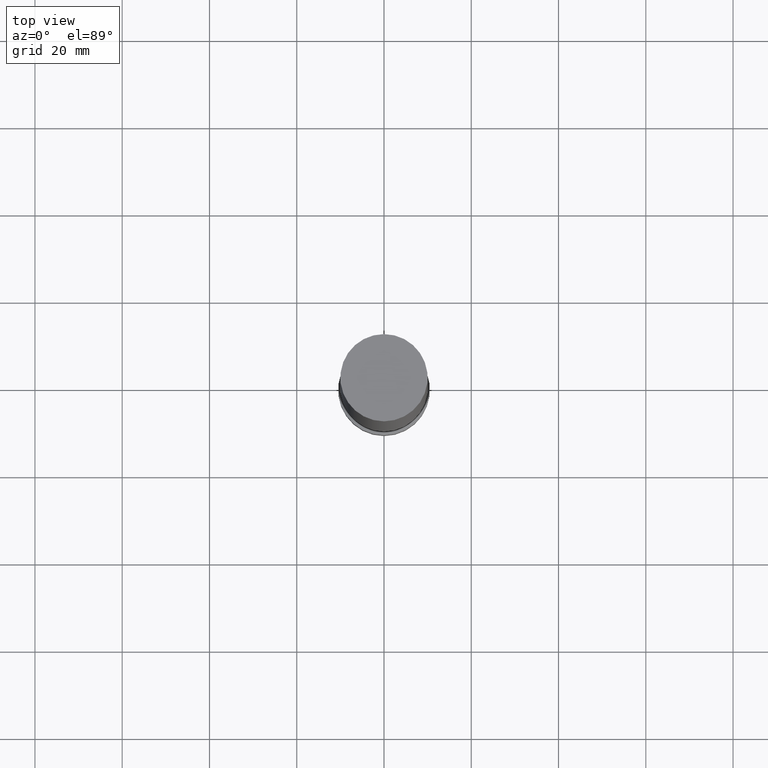
[diagram: clean part render]
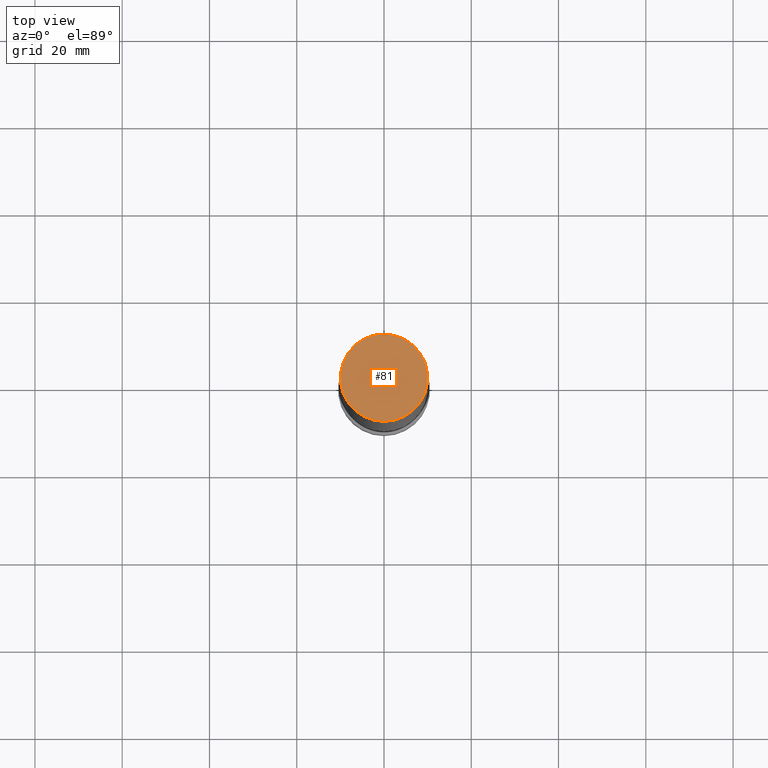
[diagram: same view with one face highlighted and labeled with its STEP entity id]
A machine part, top view. The second image highlights one B-rep face of the part: STEP entity #81.
In plain terms, the highlighted planar face has unit normal (-0, 0, 1).
Its self-contained STEP definition (entity closure, byte-faithful):
#81=ADVANCED_FACE('',(#100),#101,.T.);
#100=FACE_OUTER_BOUND('',#119,.T.);
#101=PLANE('',#120);
#119=EDGE_LOOP('',(#150));
#120=AXIS2_PLACEMENT_3D('',#151,#152,#153);
#150=ORIENTED_EDGE('',*,*,#159,.T.);
#151=CARTESIAN_POINT('',(-1.01033360929656E-014,5.00000000000816,165.0));
#152=DIRECTION('',(-6.12323399573677E-017,5.38787832378529E-014,1.0));
#153=DIRECTION('',(3.29429681897876E-030,1.0,-5.38787832378529E-014));
#159=EDGE_CURVE('',#170,#170,#171,.T.);
#170=VERTEX_POINT('',#182);
#171=CIRCLE('',#183,10.0);
#182=CARTESIAN_POINT('',(-1.01033360929656E-014,10.0000000000082,164.999999999999));
#183=AXIS2_PLACEMENT_3D('',#199,#200,#201);
#199=CARTESIAN_POINT('',(-1.01033360929657E-014,8.16532648058694E-012,165.0));
#200=DIRECTION('',(-6.12323399573677E-017,4.94467802770667E-014,1.0));
#201=DIRECTION('',(3.02291490699184E-030,1.0,-4.94467802770667E-014));